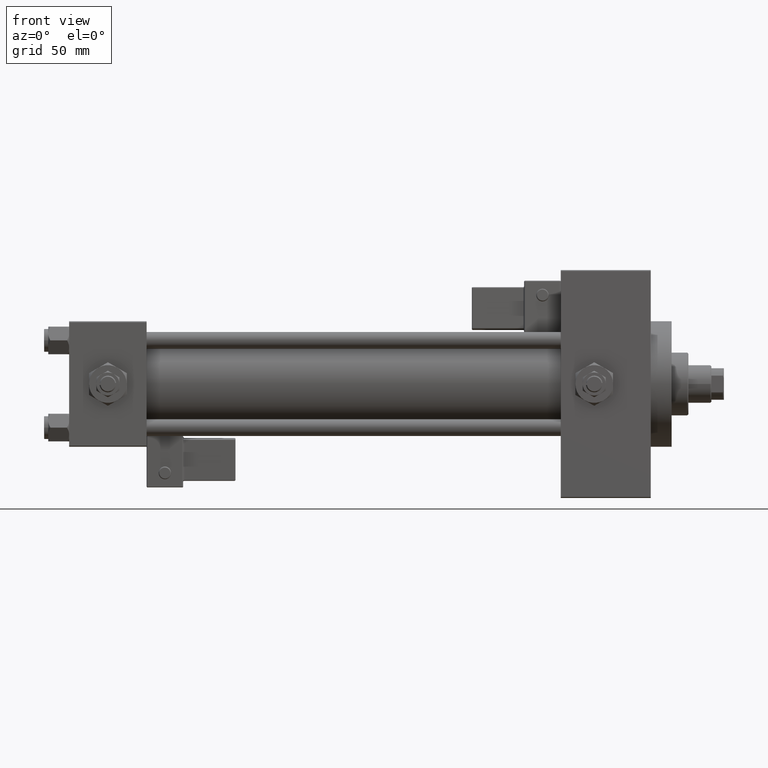
[diagram: clean part render]
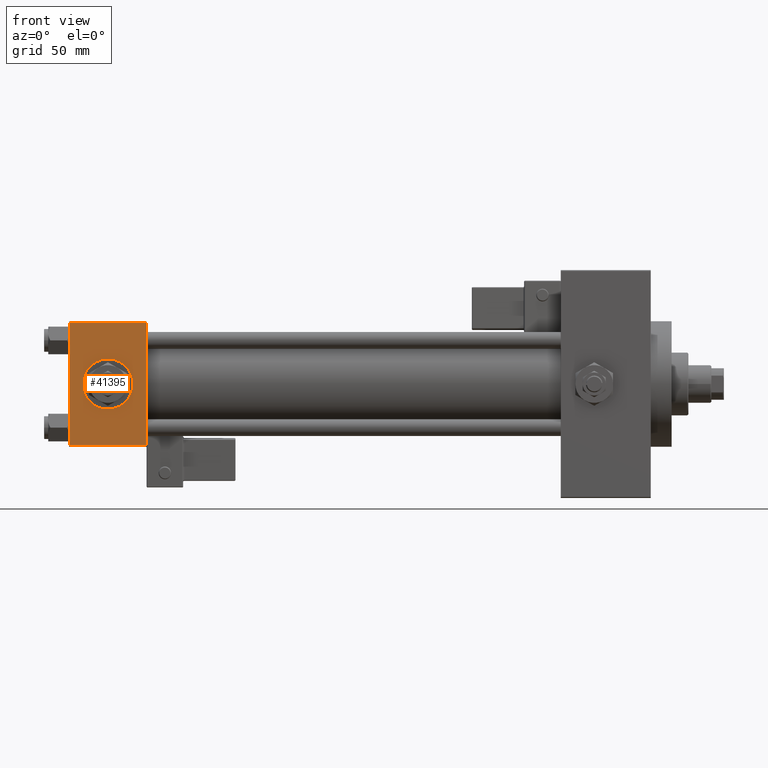
[diagram: same view with one face highlighted and labeled with its STEP entity id]
A machine part, front view. The second image highlights one B-rep face of the part: STEP entity #41395.
In plain terms, the highlighted planar face has unit normal (0, 1, 0).
Its self-contained STEP definition (entity closure, byte-faithful):
#548 = LINE ( 'NONE', #32568, #46562 ) ;
#1081 = FACE_OUTER_BOUND ( 'NONE', #42456, .T. ) ;
#1183 = CIRCLE ( 'NONE', #31072, 12.00000000000000178 ) ;
#1851 = CARTESIAN_POINT ( 'NONE',  ( 37.00000000000000000, -30.00000000000000000, 29.99999999999999289 ) ) ;
#2103 = FACE_BOUND ( 'NONE', #35765, .T. ) ;
#2370 = EDGE_CURVE ( 'NONE', #21689, #51214, #33499, .T. ) ;
#3082 = DIRECTION ( 'NONE',  ( 0.000000000000000000, 0.000000000000000000, -1.000000000000000000 ) ) ;
#3200 = DIRECTION ( 'NONE',  ( 0.000000000000000000, 0.000000000000000000, -1.000000000000000000 ) ) ;
#4290 = CARTESIAN_POINT ( 'NONE',  ( 0.000000000000000000, -30.00000000000000000, 29.49999999999999289 ) ) ;
#8839 = ORIENTED_EDGE ( 'NONE', *, *, #23082, .T. ) ;
#10257 = CARTESIAN_POINT ( 'NONE',  ( 37.00000000000000000, -30.00000000000000000, -29.50000000000001776 ) ) ;
#10731 = VERTEX_POINT ( 'NONE', #37221 ) ;
#12789 = DIRECTION ( 'NONE',  ( 0.000000000000000000, 0.000000000000000000, -1.000000000000000000 ) ) ;
#13152 = DIRECTION ( 'NONE',  ( 0.000000000000000000, -1.000000000000000000, -8.673617379884036705E-17 ) ) ;
#14218 = DIRECTION ( 'NONE',  ( -1.000000000000000000, 0.000000000000000000, 0.000000000000000000 ) ) ;
#14853 = EDGE_CURVE ( 'NONE', #21689, #18953, #548, .T. ) ;
#16300 = CARTESIAN_POINT ( 'NONE',  ( 18.50000000000000000, -30.00000000000000000, -12.00000000000000178 ) ) ;
#17739 = DIRECTION ( 'NONE',  ( -0.000000000000000000, 1.000000000000000000, 0.000000000000000000 ) ) ;
#18374 = CARTESIAN_POINT ( 'NONE',  ( 37.00000000000000000, -30.00000000000000000, -29.50000000000001776 ) ) ;
#18541 = ORIENTED_EDGE ( 'NONE', *, *, #2370, .T. ) ;
#18953 = VERTEX_POINT ( 'NONE', #18374 ) ;
#19329 = EDGE_CURVE ( 'NONE', #51214, #22026, #38839, .T. ) ;
#21689 = VERTEX_POINT ( 'NONE', #25391 ) ;
#22026 = VERTEX_POINT ( 'NONE', #27044 ) ;
#23082 = EDGE_CURVE ( 'NONE', #22026, #18953, #26128, .T. ) ;
#23126 = CARTESIAN_POINT ( 'NONE',  ( 18.50000000000000000, -30.00000000000000000, 0.000000000000000000 ) ) ;
#24829 = ORIENTED_EDGE ( 'NONE', *, *, #14853, .F. ) ;
#25022 = PLANE ( 'NONE',  #25516 ) ;
#25391 = CARTESIAN_POINT ( 'NONE',  ( 37.00000000000000000, -30.00000000000000000, 29.49999999999999289 ) ) ;
#25516 = AXIS2_PLACEMENT_3D ( 'NONE', #1851, #17739, #45061 ) ;
#26094 = ORIENTED_EDGE ( 'NONE', *, *, #19329, .T. ) ;
#26128 = LINE ( 'NONE', #10257, #31770 ) ;
#26162 = ORIENTED_EDGE ( 'NONE', *, *, #44841, .F. ) ;
#27021 = DIRECTION ( 'NONE',  ( 0.000000000000000000, -1.000000000000000000, -8.673617379884036705E-17 ) ) ;
#27044 = CARTESIAN_POINT ( 'NONE',  ( 0.000000000000000000, -30.00000000000000000, -29.50000000000001776 ) ) ;
#31072 = AXIS2_PLACEMENT_3D ( 'NONE', #23126, #27021, #3082 ) ;
#31770 = VECTOR ( 'NONE', #41996, 1000.000000000000000 ) ;
#32568 = CARTESIAN_POINT ( 'NONE',  ( 37.00000000000000000, -30.00000000000000000, 29.99999999999999289 ) ) ;
#33499 = LINE ( 'NONE', #33998, #37069 ) ;
#33998 = CARTESIAN_POINT ( 'NONE',  ( 37.00000000000000000, -30.00000000000000000, 29.49999999999999289 ) ) ;
#35034 = EDGE_CURVE ( 'NONE', #44852, #10731, #1183, .T. ) ;
#35501 = CIRCLE ( 'NONE', #42967, 12.00000000000000178 ) ;
#35722 = CARTESIAN_POINT ( 'NONE',  ( 0.000000000000000000, -30.00000000000000000, 29.99999999999999289 ) ) ;
#35765 = EDGE_LOOP ( 'NONE', ( #41974, #26162 ) ) ;
#36589 = CARTESIAN_POINT ( 'NONE',  ( 18.50000000000000000, -30.00000000000000000, 0.000000000000000000 ) ) ;
#37069 = VECTOR ( 'NONE', #14218, 1000.000000000000000 ) ;
#37221 = CARTESIAN_POINT ( 'NONE',  ( 18.50000000000000000, -30.00000000000000000, 12.00000000000000178 ) ) ;
#38839 = LINE ( 'NONE', #35722, #44933 ) ;
#41395 = ADVANCED_FACE ( 'NONE', ( #2103, #1081 ), #25022, .F. ) ;
#41974 = ORIENTED_EDGE ( 'NONE', *, *, #35034, .F. ) ;
#41996 = DIRECTION ( 'NONE',  ( 1.000000000000000000, 0.000000000000000000, 0.000000000000000000 ) ) ;
#42456 = EDGE_LOOP ( 'NONE', ( #26094, #8839, #24829, #18541 ) ) ;
#42967 = AXIS2_PLACEMENT_3D ( 'NONE', #36589, #13152, #48307 ) ;
#44841 = EDGE_CURVE ( 'NONE', #10731, #44852, #35501, .T. ) ;
#44852 = VERTEX_POINT ( 'NONE', #16300 ) ;
#44933 = VECTOR ( 'NONE', #3200, 1000.000000000000000 ) ;
#45061 = DIRECTION ( 'NONE',  ( 0.000000000000000000, -0.000000000000000000, 1.000000000000000000 ) ) ;
#46562 = VECTOR ( 'NONE', #12789, 1000.000000000000000 ) ;
#48307 = DIRECTION ( 'NONE',  ( 0.000000000000000000, 0.000000000000000000, -1.000000000000000000 ) ) ;
#51214 = VERTEX_POINT ( 'NONE', #4290 ) ;